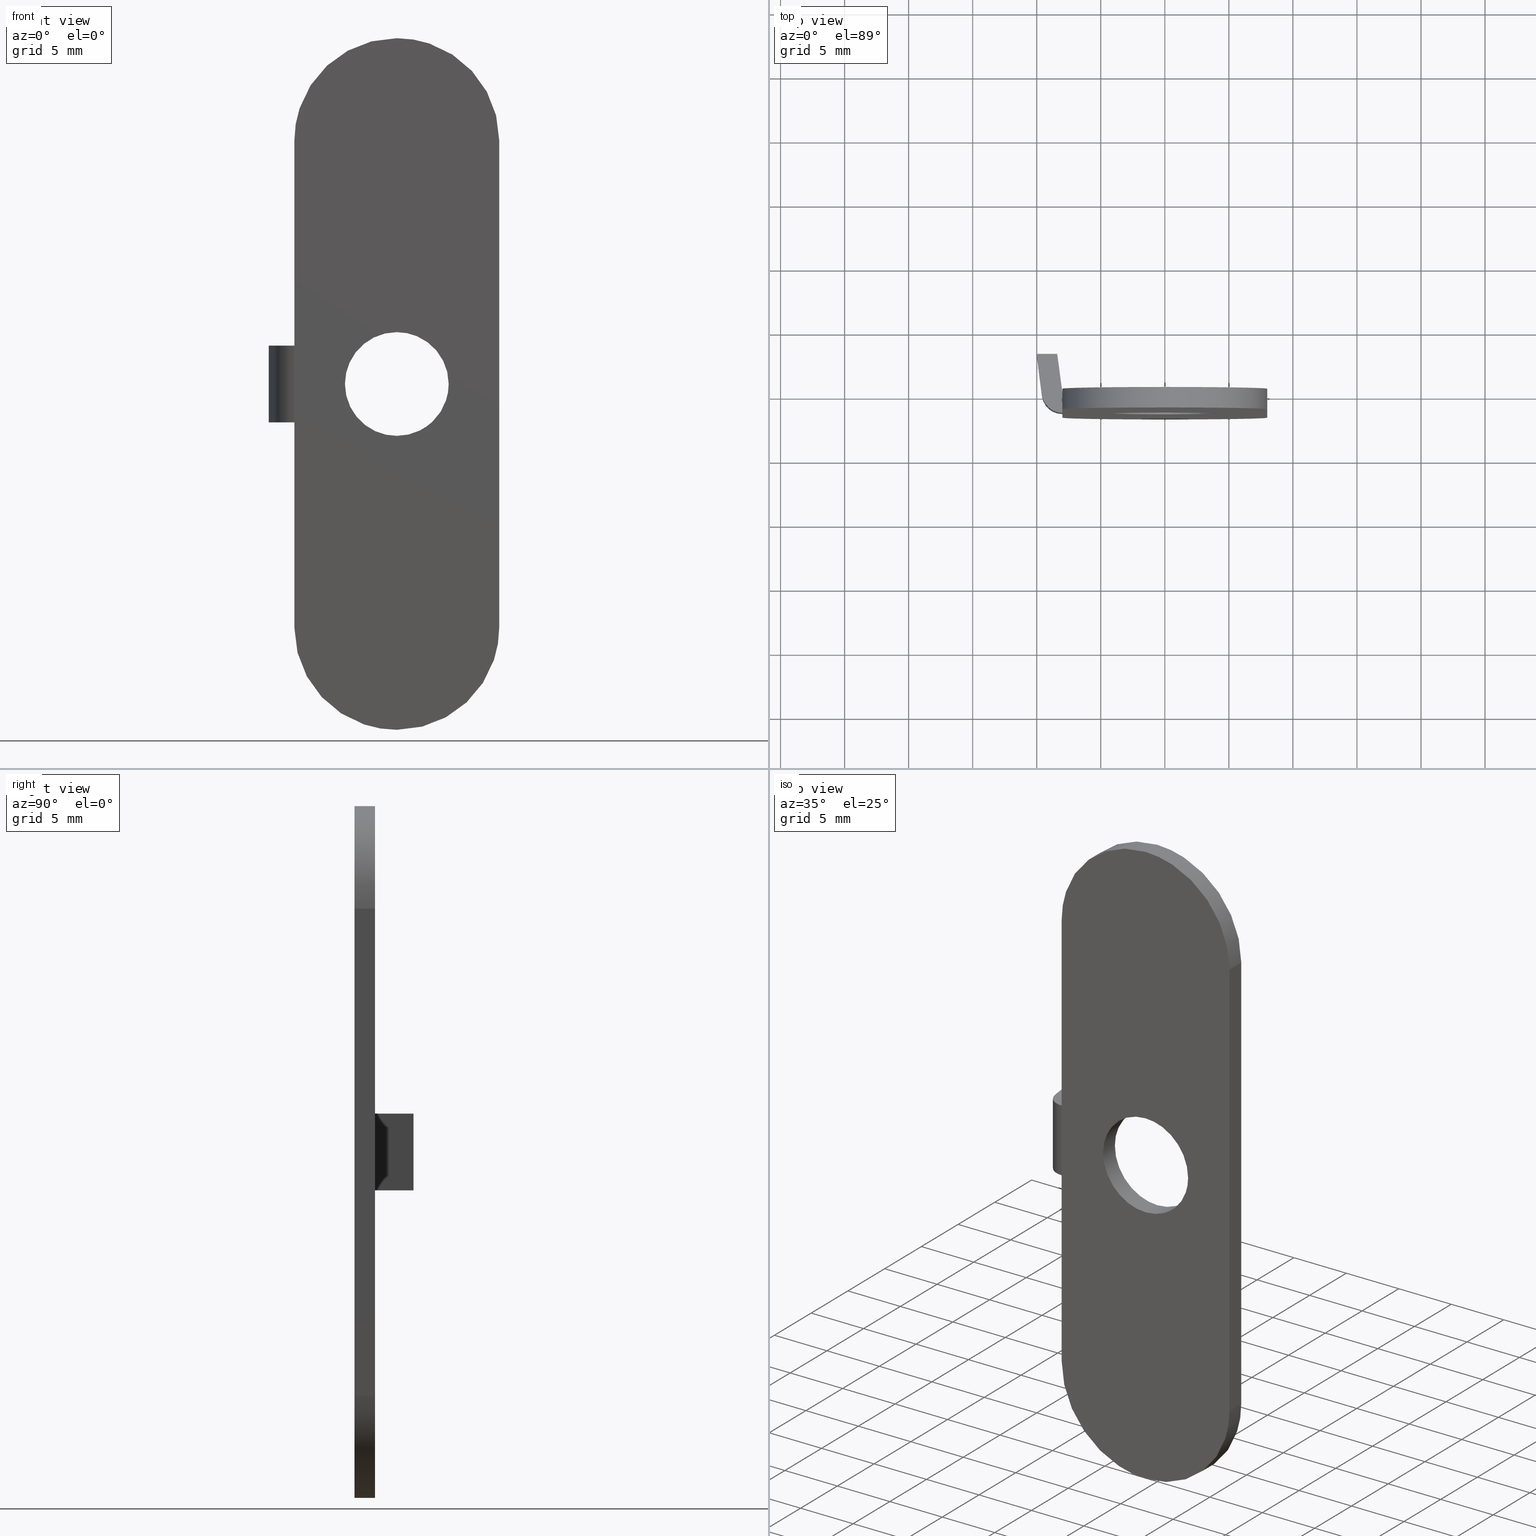
[diagram: canonical four-view strip — front | top / right | iso, engineering-drawing reading convention]
A machine part, canonical four-view strip (front | top / right | iso — engineering-drawing reading convention). The complete STEP part file that produces these views, byte-faithful:
ISO-10303-21;
HEADER;
/****************************************************************
 * Generated by software with PDE/Lib inside                    *
 * PDElib Version 4.4.1-0003, patched  Thursday August 19 11:58 *
 * International Technegroup Inc. (www.iti-oh.com)              *
 ****************************************************************/
FILE_DESCRIPTION((''),'2;1');
FILE_NAME('','2006-01-16T16:03:52',(''),(''),'','CADfix','');
FILE_SCHEMA(('AUTOMOTIVE_DESIGN'));
ENDSEC;
DATA;
#5=APPLICATION_CONTEXT('automotive design');
#6=APPLICATION_PROTOCOL_DEFINITION('Draft International Standard','automotive_design',1998,#5);
#7=PRODUCT_CONTEXT('None',#5,'mechanical');
#8=PRODUCT('base','','None',(#7));
#9=PRODUCT_RELATED_PRODUCT_CATEGORY('part','description',(#8));
#10=PRODUCT_DEFINITION_FORMATION('None','None',#8);
#11=PRODUCT_DEFINITION_CONTEXT('part definition',#5,'design');
#12=PRODUCT_DEFINITION('None','None',#10,#11);
#18=(NAMED_UNIT(*)PLANE_ANGLE_UNIT()SI_UNIT($,.RADIAN.));
#19=DIMENSIONAL_EXPONENTS(0.0,0.0,0.0,0.0,0.0,0.0,0.0);
#20=PLANE_ANGLE_MEASURE_WITH_UNIT(PLANE_ANGLE_MEASURE(0.017453292500000),#18);
#24=(CONVERSION_BASED_UNIT('DEGREE',#20)NAMED_UNIT(#19)PLANE_ANGLE_UNIT());
#28=(NAMED_UNIT(*)SI_UNIT($,.STERADIAN.)SOLID_ANGLE_UNIT());
#32=(LENGTH_UNIT()NAMED_UNIT(*)SI_UNIT(.MILLI.,.METRE.));
#34=UNCERTAINTY_MEASURE_WITH_UNIT(LENGTH_MEASURE(0.001000000000000),#32,'DISTANCE_ACCURACY_VALUE','');
#36=(GEOMETRIC_REPRESENTATION_CONTEXT(3)GLOBAL_UNCERTAINTY_ASSIGNED_CONTEXT((#34))GLOBAL_UNIT_ASSIGNED_CONTEXT((#24,#28,#32))REPRESENTATION_CONTEXT('None','None'));
#37=AXIS2_PLACEMENT_3D('',#38,#39,#40);
#38=CARTESIAN_POINT('',(0.0,0.0,0.0));
#39=DIRECTION('',(0.0,0.0,1.0));
#40=DIRECTION('',(1.0,0.0,0.0));
#41=ADVANCED_BREP_SHAPE_REPRESENTATION('',(#37,#765),#36);
#42=PRODUCT_DEFINITION_SHAPE('','',#12);
#43=SHAPE_DEFINITION_REPRESENTATION(#42,#41);
#44=CARTESIAN_POINT('',(3.092400353908882,0.039999774999999,2.615255255447202));
#45=CARTESIAN_POINT('',(3.017552872087634,0.039999774999999,2.703758424991023));
#46=CARTESIAN_POINT('',(2.937766202599764,0.039999774999999,2.787836031559702));
#47=CARTESIAN_POINT('',(0.149930171040061,0.039999774999999,5.725602234159466));
#48=CARTESIAN_POINT('',(-2.787836031559702,0.039999774999999,2.937766202599764));
#49=CARTESIAN_POINT('',(-5.725602234159466,0.039999774999999,0.149930171040061));
#50=CARTESIAN_POINT('',(-2.937766202599764,0.039999774999999,-2.787836031559702));
#51=CARTESIAN_POINT('',(-0.149930171040061,0.039999774999999,-5.725602234159466));
#52=CARTESIAN_POINT('',(2.787836031559702,0.039999774999999,-2.937766202599764));
#53=CARTESIAN_POINT('',(3.092400353908882,-1.640990769374965,2.615255255447202));
#54=CARTESIAN_POINT('',(3.017552872087634,-1.640990769374965,2.703758424991023));
#55=CARTESIAN_POINT('',(2.937766202599764,-1.640990769374964,2.787836031559702));
#56=CARTESIAN_POINT('',(0.149930171040061,-1.640990769374964,5.725602234159466));
#57=CARTESIAN_POINT('',(-2.787836031559702,-1.640990769374964,2.937766202599764));
#58=CARTESIAN_POINT('',(-5.725602234159466,-1.640990769374964,0.149930171040061));
#59=CARTESIAN_POINT('',(-2.937766202599764,-1.640990769374964,-2.787836031559702));
#60=CARTESIAN_POINT('',(-0.149930171040061,-1.640990769374964,-5.725602234159466));
#61=CARTESIAN_POINT('',(2.787836031559702,-1.640990769374964,-2.937766202599764));
#69=(BOUNDED_SURFACE()B_SPLINE_SURFACE(2,1,((#44,#53),(#45,#54),(#46,#55),(#47,#56),(#48,#57),(#49,#58),(#50,#59),(#51,#60),(#52,#61)),.UNSPECIFIED.,.F.,.F.,.U.)B_SPLINE_SURFACE_WITH_KNOTS((3,2,2,2,3),(2,2),(0.0,0.268410388417766,6.978670098861904,13.688929809306041,20.399189519750180),(0.0,1.0),.UNSPECIFIED.)GEOMETRIC_REPRESENTATION_ITEM()RATIONAL_B_SPLINE_SURFACE(((0.977505800795127,0.977505800795127),(0.988284271247462,0.988284271247462),(1.0,1.0),(0.707106781186548,0.707106781186548),(1.0,1.0),(0.707106781186548,0.707106781186548),(1.0,1.0),(0.707106781186548,0.707106781186548),(1.0,1.0)))REPRESENTATION_ITEM('')SURFACE());
#70=CARTESIAN_POINT('',(3.092400469154631,-1.599991000001859,2.615255294156009));
#71=VERTEX_POINT('',#70);
#72=CARTESIAN_POINT('',(0.0,-1.599990999999965,4.050000000000000));
#73=VERTEX_POINT('',#72);
#74=CARTESIAN_POINT('',(3.092400469154631,-1.599991000001859,2.615255294156009));
#75=CARTESIAN_POINT('',(2.820376977691375,-1.599991000001693,2.937277410438692));
#76=CARTESIAN_POINT('',(2.300836514893741,-1.599991000001375,3.385744414825498));
#77=CARTESIAN_POINT('',(1.493138806899813,-1.599991000000878,3.787413040616861));
#78=CARTESIAN_POINT('',(0.769694009481361,-1.599991000000438,3.999427392969075));
#79=CARTESIAN_POINT('',(0.274895964038809,-1.599991000000127,4.050034765647252));
#80=CARTESIAN_POINT('',(0.0,-1.599990999999965,4.050000000000000));
#81=B_SPLINE_CURVE_WITH_KNOTS('',3,(#74,#75,#76,#77,#78,#79,#80),.UNSPECIFIED.,.F.,.U.,(4,1,1,1,4),(0.000000015928992,1.264529401427014,2.034226246631516,2.693985453096188,3.518673681886411),.UNSPECIFIED.);
#82=EDGE_CURVE('',#71,#73,#81,.T.);
#83=ORIENTED_EDGE('',*,*,#82,.T.);
#84=CARTESIAN_POINT('',(-4.049999999999974,-1.599990999999965,-0.000000458331463));
#85=VERTEX_POINT('',#84);
#86=CARTESIAN_POINT('',(0.0,-1.599990999999965,4.050000000000000));
#87=CARTESIAN_POINT('',(-0.381054484313349,-1.599990999999965,4.050140602619687));
#88=CARTESIAN_POINT('',(-1.010515882282830,-1.599990999999965,3.960478360670183));
#89=CARTESIAN_POINT('',(-1.800263474168595,-1.599990999999965,3.650198816271311));
#90=CARTESIAN_POINT('',(-2.453598175635486,-1.599990999999961,3.253170430365296));
#91=CARTESIAN_POINT('',(-3.046438682187678,-1.599990999999966,2.715894467325104));
#92=CARTESIAN_POINT('',(-3.501115867815219,-1.599990999999963,2.078566816770383));
#93=CARTESIAN_POINT('',(-3.827842104405860,-1.599990999999986,1.387769674100269));
#94=CARTESIAN_POINT('',(-4.010294287966048,-1.599990999999902,0.712385562720853));
#95=CARTESIAN_POINT('',(-4.050008687073341,-1.599991000000036,0.215367743600465));
#96=CARTESIAN_POINT('',(-4.049999999999974,-1.599990999999965,-0.000000458331463));
#97=B_SPLINE_CURVE_WITH_KNOTS('',3,(#86,#87,#88,#89,#90,#91,#92,#93,#94,#95,#96),.UNSPECIFIED.,.F.,.U.,(4,1,1,1,1,1,1,1,4),(0.000000055227183,1.143122650493126,1.888650764688554,2.534773102149365,3.429381718679102,4.274308838590464,4.870726688445481,5.715652830963844,6.361765298970928),.UNSPECIFIED.);
#98=EDGE_CURVE('',#73,#85,#97,.T.);
#99=ORIENTED_EDGE('',*,*,#98,.T.);
#100=CARTESIAN_POINT('',(0.0,-1.599990999999965,-4.050000000000000));
#101=VERTEX_POINT('',#100);
#102=CARTESIAN_POINT('',(-4.049999999999974,-1.599990999999965,-0.000000458331463));
#103=CARTESIAN_POINT('',(-4.050201243229171,-1.599990999999974,-0.414195219986316));
#104=CARTESIAN_POINT('',(-3.937173920950953,-1.599990999999945,-1.143030930930646));
#105=CARTESIAN_POINT('',(-3.560234583896198,-1.599990999999985,-1.979403110114198));
#106=CARTESIAN_POINT('',(-3.143165495486218,-1.599990999999945,-2.579282978451702));
#107=CARTESIAN_POINT('',(-2.661637303840499,-1.599990999999951,-3.085117777227258));
#108=CARTESIAN_POINT('',(-2.078568684010875,-1.599991000000042,-3.501118182822238));
#109=CARTESIAN_POINT('',(-1.432818437939988,-1.599990999999898,-3.806521129870342));
#110=CARTESIAN_POINT('',(-0.762065598154865,-1.599990999999986,-4.001024033879598));
#111=CARTESIAN_POINT('',(-0.265070882309666,-1.599990999999965,-4.050037229062435));
#112=CARTESIAN_POINT('',(0.0,-1.599990999999965,-4.050000000000000));
#113=B_SPLINE_CURVE_WITH_KNOTS('',3,(#102,#103,#104,#105,#106,#107,#108,#109,#110,#111,#112),.UNSPECIFIED.,.F.,.U.,(4,1,1,1,1,1,1,1,4),(0.000000055387317,1.242531855871150,2.186866573110421,2.733573998402191,3.429381440726923,4.274308491726776,4.870726292973097,5.566556277256678,6.361764782321302),.UNSPECIFIED.);
#114=EDGE_CURVE('',#85,#101,#113,.T.);
#115=ORIENTED_EDGE('',*,*,#114,.T.);
#116=CARTESIAN_POINT('',(2.787835918983155,-1.599990999997954,-2.937766151683632));
#117=VERTEX_POINT('',#116);
#118=CARTESIAN_POINT('',(0.0,-1.599990999999965,-4.050000000000000));
#119=CARTESIAN_POINT('',(0.272254321299276,-1.599990999999766,-4.050041422317981));
#120=CARTESIAN_POINT('',(0.736667426263353,-1.599990999999435,-4.002980208834696));
#121=CARTESIAN_POINT('',(1.416976343417097,-1.599990999998945,-3.812625169096760));
#122=CARTESIAN_POINT('',(2.102919850558829,-1.599990999998443,-3.495560729496080));
#123=CARTESIAN_POINT('',(2.555550301668501,-1.599990999998125,-3.158303154968257));
#124=CARTESIAN_POINT('',(2.787835918983155,-1.599990999997954,-2.937766151683632));
#125=B_SPLINE_CURVE_WITH_KNOTS('',3,(#118,#119,#120,#121,#122,#123,#124),.UNSPECIFIED.,.F.,.U.,(4,1,1,1,4),(0.000000013875821,0.816757953015864,1.393299582913002,2.113960479790959,3.074851748193050),.UNSPECIFIED.);
#126=EDGE_CURVE('',#101,#117,#125,.T.);
#127=ORIENTED_EDGE('',*,*,#126,.T.);
#128=CARTESIAN_POINT('',(2.787835919395448,-3.816392E-017,-2.937766151292380));
#129=VERTEX_POINT('',#128);
#130=CARTESIAN_POINT('',(2.787835919395448,-3.816392E-017,-2.937766151292380));
#131=CARTESIAN_POINT('',(2.787835918983155,-1.599990999997954,-2.937766151683632));
#132=QUASI_UNIFORM_CURVE('',1,(#130,#131),.UNSPECIFIED.,.F.,.U.);
#133=EDGE_CURVE('',#129,#117,#132,.T.);
#134=ORIENTED_EDGE('',*,*,#133,.F.);
#135=CARTESIAN_POINT('',(0.0,0.0,-4.050000000000000));
#136=VERTEX_POINT('',#135);
#137=CARTESIAN_POINT('',(0.0,0.0,-4.050000000000000));
#138=CARTESIAN_POINT('',(0.240220417416853,-3.288483E-018,-4.050016184962010));
#139=CARTESIAN_POINT('',(0.768710072565096,-1.052321E-017,-4.002872189160777));
#140=CARTESIAN_POINT('',(1.448842863436156,-1.983385E-017,-3.803827950127444));
#141=CARTESIAN_POINT('',(2.154643793244180,-2.949587E-017,-3.457007878002749));
#142=CARTESIAN_POINT('',(2.555545794519778,-3.498399E-017,-3.158300278042939));
#143=CARTESIAN_POINT('',(2.787835919395448,-3.816392E-017,-2.937766151292380));
#144=B_SPLINE_CURVE_WITH_KNOTS('',3,(#137,#138,#139,#140,#141,#142,#143),.UNSPECIFIED.,.F.,.U.,(4,1,1,1,4),(0.000000013875587,0.720667942032535,1.585462012393952,2.113960480181659,3.074851748761453),.UNSPECIFIED.);
#145=EDGE_CURVE('',#136,#129,#144,.T.);
#146=ORIENTED_EDGE('',*,*,#145,.F.);
#147=CARTESIAN_POINT('',(-4.049999999999974,0.0,-0.000000458331463));
#148=VERTEX_POINT('',#147);
#149=CARTESIAN_POINT('',(-4.049999999999974,0.0,-0.000000458331463));
#150=CARTESIAN_POINT('',(-4.050201210590498,0.0,-0.414195210118378));
#151=CARTESIAN_POINT('',(-3.937173954854492,0.0,-1.143030933931603));
#152=CARTESIAN_POINT('',(-3.560234567187769,0.0,-1.979403110597706));
#153=CARTESIAN_POINT('',(-3.143165499961528,0.0,-2.579282977979685));
#154=CARTESIAN_POINT('',(-2.661637304370337,0.0,-3.085117777128934));
#155=CARTESIAN_POINT('',(-2.078568683836292,0.0,-3.501118182854742));
#156=CARTESIAN_POINT('',(-1.432818437965541,0.0,-3.806521129865583));
#157=CARTESIAN_POINT('',(-0.762065598154865,0.0,-4.001024033879598));
#158=CARTESIAN_POINT('',(-0.265070882309666,0.0,-4.050037229062436));
#159=CARTESIAN_POINT('',(0.0,0.0,-4.050000000000000));
#160=B_SPLINE_CURVE_WITH_KNOTS('',3,(#149,#150,#151,#152,#153,#154,#155,#156,#157,#158,#159),.UNSPECIFIED.,.F.,.U.,(4,1,1,1,1,1,1,1,4),(0.000000055387317,1.242531855871150,2.186866573110421,2.733573998402191,3.429381440726923,4.274308491726776,4.870726292973097,5.566556277256678,6.361764782321302),.UNSPECIFIED.);
#161=EDGE_CURVE('',#148,#136,#160,.T.);
#162=ORIENTED_EDGE('',*,*,#161,.F.);
#163=CARTESIAN_POINT('',(0.0,0.0,4.050000000000000));
#164=VERTEX_POINT('',#163);
#165=CARTESIAN_POINT('',(0.0,0.0,4.050000000000000));
#166=CARTESIAN_POINT('',(-0.381054484313349,0.0,4.050140602619686));
#167=CARTESIAN_POINT('',(-1.010515882282831,0.0,3.960478360670185));
#168=CARTESIAN_POINT('',(-1.800263474168595,0.0,3.650198816271311));
#169=CARTESIAN_POINT('',(-2.453598175635485,0.0,3.253170430365298));
#170=CARTESIAN_POINT('',(-3.046438682187677,0.0,2.715894467325104));
#171=CARTESIAN_POINT('',(-3.501115867815219,0.0,2.078566816770383));
#172=CARTESIAN_POINT('',(-3.827842104405859,0.0,1.387769674100270));
#173=CARTESIAN_POINT('',(-4.010294287966048,0.0,0.712385562720852));
#174=CARTESIAN_POINT('',(-4.050008687073340,0.0,0.215367743600465));
#175=CARTESIAN_POINT('',(-4.049999999999974,0.0,-0.000000458331463));
#176=B_SPLINE_CURVE_WITH_KNOTS('',3,(#165,#166,#167,#168,#169,#170,#171,#172,#173,#174,#175),.UNSPECIFIED.,.F.,.U.,(4,1,1,1,1,1,1,1,4),(0.000000055227183,1.143122650493126,1.888650764688554,2.534773102149365,3.429381718679102,4.274308838590464,4.870726688445481,5.715652830963844,6.361765298970928),.UNSPECIFIED.);
#177=EDGE_CURVE('',#164,#148,#176,.T.);
#178=ORIENTED_EDGE('',*,*,#177,.F.);
#179=CARTESIAN_POINT('',(3.092400468792818,-3.904214E-017,2.615255294583833));
#180=VERTEX_POINT('',#179);
#181=CARTESIAN_POINT('',(3.092400468792818,-3.904214E-017,2.615255294583833));
#182=CARTESIAN_POINT('',(2.914918407133498,-3.680139E-017,2.825179600935564));
#183=CARTESIAN_POINT('',(2.530233861974607,-3.194468E-017,3.195875660060409));
#184=CARTESIAN_POINT('',(1.925845666971410,-2.431416E-017,3.583393025228045));
#185=CARTESIAN_POINT('',(1.284921207924465,-1.622237E-017,3.859869496647573));
#186=CARTESIAN_POINT('',(0.659749133948133,-8.329457E-018,4.015747611664701));
#187=CARTESIAN_POINT('',(0.201587019214080,-2.545074E-018,4.050004308013179));
#188=CARTESIAN_POINT('',(0.0,0.0,4.050000000000000));
#189=B_SPLINE_CURVE_WITH_KNOTS('',3,(#181,#182,#183,#184,#185,#186,#187,#188),.UNSPECIFIED.,.F.,.U.,(4,1,1,1,1,4),(0.000000015929191,0.824688244593100,1.594410479268914,2.144189492079690,2.913905276473439,3.518673681326092),.UNSPECIFIED.);
#190=EDGE_CURVE('',#180,#164,#189,.T.);
#191=ORIENTED_EDGE('',*,*,#190,.F.);
#192=CARTESIAN_POINT('',(3.092400468792818,-3.904214E-017,2.615255294583833));
#193=CARTESIAN_POINT('',(3.092400469154631,-1.599991000001859,2.615255294156009));
#194=QUASI_UNIFORM_CURVE('',1,(#192,#193),.UNSPECIFIED.,.F.,.U.);
#195=EDGE_CURVE('',#180,#71,#194,.T.);
#196=ORIENTED_EDGE('',*,*,#195,.T.);
#197=EDGE_LOOP('',(#83,#99,#115,#127,#134,#146,#162,#178,#191,#196));
#198=FACE_OUTER_BOUND('',#197,.T.);
#199=ADVANCED_FACE('',(#198),#69,.F.);
#200=CARTESIAN_POINT('',(2.787836031559702,0.039999774999999,-2.937766202599764));
#201=CARTESIAN_POINT('',(5.562125650609031,0.039999774999999,-0.305063656317029));
#202=CARTESIAN_POINT('',(3.092400353908882,0.039999774999999,2.615255255447202));
#203=CARTESIAN_POINT('',(2.787836031559702,-1.640990769374964,-2.937766202599764));
#204=CARTESIAN_POINT('',(5.562125650609031,-1.640990769374964,-0.305063656317029));
#205=CARTESIAN_POINT('',(3.092400353908882,-1.640990769374965,2.615255255447202));
#213=(BOUNDED_SURFACE()B_SPLINE_SURFACE(2,1,((#200,#203),(#201,#204),(#202,#205)),.UNSPECIFIED.,.F.,.F.,.U.)B_SPLINE_SURFACE_WITH_KNOTS((3,3),(2,2),(0.0,6.440081412770597),(0.0,1.0),.UNSPECIFIED.)GEOMETRIC_REPRESENTATION_ITEM()RATIONAL_B_SPLINE_SURFACE(((1.0,1.0),(0.718822509939086,0.718822509939086),(0.977505800795127,0.977505800795127)))REPRESENTATION_ITEM('')SURFACE());
#214=CARTESIAN_POINT('',(4.049999999999973,-1.599990999999965,0.000000458331472));
#215=VERTEX_POINT('',#214);
#216=CARTESIAN_POINT('',(4.049999999999973,-1.599990999999965,0.000000458331472));
#217=CARTESIAN_POINT('',(4.050147345321640,-1.599991000000244,0.385021680494588));
#218=CARTESIAN_POINT('',(3.962745837365865,-1.599991000000690,0.992037114315919));
#219=CARTESIAN_POINT('',(3.621113157875833,-1.599991000001318,1.879469827514581));
#220=CARTESIAN_POINT('',(3.312407704599532,-1.599991000001674,2.355261533687516));
#221=CARTESIAN_POINT('',(3.092400469154631,-1.599991000001859,2.615255294156009));
#222=B_SPLINE_CURVE_WITH_KNOTS('',3,(#216,#217,#218,#219,#220,#221),.UNSPECIFIED.,.F.,.U.,(4,1,1,4),(0.000000012530482,1.155009485333611,1.821353007942206,2.843092339355573),.UNSPECIFIED.);
#223=EDGE_CURVE('',#215,#71,#222,.T.);
#224=ORIENTED_EDGE('',*,*,#223,.T.);
#225=ORIENTED_EDGE('',*,*,#195,.F.);
#226=CARTESIAN_POINT('',(4.049999999999973,0.0,0.000000458331472));
#227=VERTEX_POINT('',#226);
#228=CARTESIAN_POINT('',(4.049999999999973,0.0,0.000000458331472));
#229=CARTESIAN_POINT('',(4.050013335170339,-3.757967E-018,0.251729535548440));
#230=CARTESIAN_POINT('',(3.997412479908575,-1.215826E-017,0.814427069484117));
#231=CARTESIAN_POINT('',(3.714040923694002,-2.575719E-017,1.725357046290256));
#232=CARTESIAN_POINT('',(3.341123608561907,-3.465480E-017,2.321367472700882));
#233=CARTESIAN_POINT('',(3.092400468792818,-3.904214E-017,2.615255294583833));
#234=B_SPLINE_CURVE_WITH_KNOTS('',3,(#228,#229,#230,#231,#232,#233),.UNSPECIFIED.,.F.,.U.,(4,1,1,4),(0.000000012530525,0.755196916126529,1.688082866877942,2.843092339915888),.UNSPECIFIED.);
#235=EDGE_CURVE('',#227,#180,#234,.T.);
#236=ORIENTED_EDGE('',*,*,#235,.F.);
#237=CARTESIAN_POINT('',(2.787835919395448,-3.816392E-017,-2.937766151292380));
#238=CARTESIAN_POINT('',(2.961698824237356,-3.602091E-017,-2.772802412003677));
#239=CARTESIAN_POINT('',(3.291390689146556,-3.116492E-017,-2.398999906914581));
#240=CARTESIAN_POINT('',(3.653240560915428,-2.330387E-017,-1.793875618788867));
#241=CARTESIAN_POINT('',(3.961906471046350,-1.289758E-017,-0.992824529655005));
#242=CARTESIAN_POINT('',(4.050164129829514,-5.115335E-018,-0.393765746528907));
#243=CARTESIAN_POINT('',(4.049999999999973,0.0,0.000000458331472));
#244=B_SPLINE_CURVE_WITH_KNOTS('',3,(#237,#238,#239,#240,#241,#242,#243),.UNSPECIFIED.,.F.,.U.,(4,1,1,1,4),(0.000000016472788,0.719011960539485,1.489392776201737,2.105678138751504,3.286913793346115),.UNSPECIFIED.);
#245=EDGE_CURVE('',#129,#227,#244,.T.);
#246=ORIENTED_EDGE('',*,*,#245,.F.);
#247=ORIENTED_EDGE('',*,*,#133,.T.);
#248=CARTESIAN_POINT('',(2.787835918983155,-1.599990999997954,-2.937766151683632));
#249=CARTESIAN_POINT('',(3.011403582672485,-1.599990999998101,-2.725693667472977));
#250=CARTESIAN_POINT('',(3.398666969683116,-1.599990999998413,-2.263382151183006));
#251=CARTESIAN_POINT('',(3.761295607858146,-1.599990999998897,-1.559207491373230));
#252=CARTESIAN_POINT('',(3.993044856083322,-1.599990999999419,-0.804578728298740));
#253=CARTESIAN_POINT('',(4.050066773174976,-1.599990999999753,-0.308152803475064));
#254=CARTESIAN_POINT('',(4.049999999999973,-1.599990999999965,0.000000458331472));
#255=B_SPLINE_CURVE_WITH_KNOTS('',3,(#248,#249,#250,#251,#252,#253,#254),.UNSPECIFIED.,.F.,.U.,(4,1,1,1,4),(0.000000016472933,0.924444961002549,1.797521033919546,2.362468849384825,3.286913793914511),.UNSPECIFIED.);
#256=EDGE_CURVE('',#117,#215,#255,.T.);
#257=ORIENTED_EDGE('',*,*,#256,.T.);
#258=EDGE_LOOP('',(#224,#225,#236,#246,#247,#257));
#259=FACE_OUTER_BOUND('',#258,.T.);
#260=ADVANCED_FACE('',(#259),#213,.F.);
#261=CARTESIAN_POINT('',(-10.099899996123609,-1.829774278946591,3.0));
#262=CARTESIAN_POINT('',(-7.900099950232208,-1.829774278946591,3.0));
#263=CARTESIAN_POINT('',(-10.099899996123609,3.229770318455473,3.0));
#264=CARTESIAN_POINT('',(-7.900099950232208,3.229770318455473,3.0));
#265=B_SPLINE_SURFACE_WITH_KNOTS('',1,1,((#261,#263),(#262,#264)),.UNSPECIFIED.,.F.,.F.,.U.,(2,2),(2,2),(0.0,2.199800045891403),(0.0,5.059544597402065),.UNSPECIFIED.);
#266=CARTESIAN_POINT('',(-9.586867277870271,-0.204578206132975,3.0));
#267=VERTEX_POINT('',#266);
#268=CARTESIAN_POINT('',(-10.0,3.0,3.0));
#269=VERTEX_POINT('',#268);
#270=CARTESIAN_POINT('',(-9.586867277870271,-0.204578206132975,3.0));
#271=CARTESIAN_POINT('',(-10.0,3.0,3.0));
#272=QUASI_UNIFORM_CURVE('',1,(#270,#271),.UNSPECIFIED.,.F.,.U.);
#273=EDGE_CURVE('',#267,#269,#272,.T.);
#274=ORIENTED_EDGE('',*,*,#273,.F.);
#275=CARTESIAN_POINT('',(-8.0,-1.600004125000085,3.0));
#276=VERTEX_POINT('',#275);
#277=CARTESIAN_POINT('',(-9.586867277870271,-0.204578206132975,3.0));
#278=CARTESIAN_POINT('',(-9.566953281561156,-0.359589090497325,2.999999999999999));
#279=CARTESIAN_POINT('',(-9.491022679725369,-0.628544498606450,3.0));
#280=CARTESIAN_POINT('',(-9.275554269501662,-0.993060559528498,2.999999999999997));
#281=CARTESIAN_POINT('',(-9.001999854975544,-1.268521695400263,3.000000000000006));
#282=CARTESIAN_POINT('',(-8.670133183435954,-1.467886770933523,2.999999999999989));
#283=CARTESIAN_POINT('',(-8.336600474465611,-1.576753670052306,3.000000000000035));
#284=CARTESIAN_POINT('',(-8.108193150470292,-1.600018611005220,2.999999999999977));
#285=CARTESIAN_POINT('',(-8.0,-1.600004125000085,3.0));
#286=B_SPLINE_CURVE_WITH_KNOTS('',3,(#277,#278,#279,#280,#281,#282,#283,#284,#285),.UNSPECIFIED.,.F.,.U.,(4,1,1,1,1,1,4),(0.000000058569539,0.468845914129515,0.829507329329176,1.262271806914762,1.622938742820413,1.983600158020199,2.308185715951479),.UNSPECIFIED.);
#287=EDGE_CURVE('',#267,#276,#286,.T.);
#288=ORIENTED_EDGE('',*,*,#287,.T.);
#289=CARTESIAN_POINT('',(-8.0,0.000026249934202,3.0));
#290=VERTEX_POINT('',#289);
#291=CARTESIAN_POINT('',(-8.0,0.000026249934202,3.0));
#292=CARTESIAN_POINT('',(-8.0,-1.600004125000085,3.0));
#293=QUASI_UNIFORM_CURVE('',1,(#291,#292),.UNSPECIFIED.,.F.,.U.);
#294=EDGE_CURVE('',#290,#276,#293,.T.);
#295=ORIENTED_EDGE('',*,*,#294,.F.);
#296=CARTESIAN_POINT('',(-8.400002000000001,3.0,3.0));
#297=VERTEX_POINT('',#296);
#298=CARTESIAN_POINT('',(-8.400002000000001,3.0,3.0));
#299=CARTESIAN_POINT('',(-8.0,0.000026249934202,3.0));
#300=QUASI_UNIFORM_CURVE('',1,(#298,#299),.UNSPECIFIED.,.F.,.U.);
#301=EDGE_CURVE('',#297,#290,#300,.T.);
#302=ORIENTED_EDGE('',*,*,#301,.F.);
#303=CARTESIAN_POINT('',(-10.0,3.0,3.0));
#304=CARTESIAN_POINT('',(-8.400002000000001,3.0,3.0));
#305=QUASI_UNIFORM_CURVE('',1,(#303,#304),.UNSPECIFIED.,.F.,.U.);
#306=EDGE_CURVE('',#269,#297,#305,.T.);
#307=ORIENTED_EDGE('',*,*,#306,.F.);
#308=EDGE_LOOP('',(#274,#288,#295,#302,#307));
#309=FACE_OUTER_BOUND('',#308,.T.);
#310=ADVANCED_FACE('',(#309),#265,.T.);
#311=CARTESIAN_POINT('',(-10.099899996123609,-1.829774278946591,-3.0));
#312=CARTESIAN_POINT('',(-7.900099950232208,-1.829774278946591,-3.0));
#313=CARTESIAN_POINT('',(-10.099899996123609,3.229770318455473,-3.0));
#314=CARTESIAN_POINT('',(-7.900099950232208,3.229770318455473,-3.0));
#315=B_SPLINE_SURFACE_WITH_KNOTS('',1,1,((#311,#313),(#312,#314)),.UNSPECIFIED.,.F.,.F.,.U.,(2,2),(2,2),(0.0,2.199800045891403),(0.0,5.059544597402065),.UNSPECIFIED.);
#316=CARTESIAN_POINT('',(-9.586867277870271,-0.204578206132975,-3.0));
#317=VERTEX_POINT('',#316);
#318=CARTESIAN_POINT('',(-10.0,3.0,-3.0));
#319=VERTEX_POINT('',#318);
#320=CARTESIAN_POINT('',(-9.586867277870271,-0.204578206132975,-3.0));
#321=CARTESIAN_POINT('',(-10.0,3.0,-3.0));
#322=QUASI_UNIFORM_CURVE('',1,(#320,#321),.UNSPECIFIED.,.F.,.U.);
#323=EDGE_CURVE('',#317,#319,#322,.T.);
#324=ORIENTED_EDGE('',*,*,#323,.T.);
#325=CARTESIAN_POINT('',(-8.400002000000001,3.0,-3.0));
#326=VERTEX_POINT('',#325);
#327=CARTESIAN_POINT('',(-10.0,3.0,-3.0));
#328=CARTESIAN_POINT('',(-8.400002000000001,3.0,-3.0));
#329=QUASI_UNIFORM_CURVE('',1,(#327,#328),.UNSPECIFIED.,.F.,.U.);
#330=EDGE_CURVE('',#319,#326,#329,.T.);
#331=ORIENTED_EDGE('',*,*,#330,.T.);
#332=CARTESIAN_POINT('',(-8.0,0.000026249934202,-3.0));
#333=VERTEX_POINT('',#332);
#334=CARTESIAN_POINT('',(-8.400002000000001,3.0,-3.0));
#335=CARTESIAN_POINT('',(-8.0,0.000026249934202,-3.0));
#336=QUASI_UNIFORM_CURVE('',1,(#334,#335),.UNSPECIFIED.,.F.,.U.);
#337=EDGE_CURVE('',#326,#333,#336,.T.);
#338=ORIENTED_EDGE('',*,*,#337,.T.);
#339=CARTESIAN_POINT('',(-8.0,-1.600004125000085,-3.0));
#340=VERTEX_POINT('',#339);
#341=CARTESIAN_POINT('',(-8.0,0.000026249934202,-3.0));
#342=CARTESIAN_POINT('',(-8.0,-1.600004125000085,-3.0));
#343=QUASI_UNIFORM_CURVE('',1,(#341,#342),.UNSPECIFIED.,.F.,.U.);
#344=EDGE_CURVE('',#333,#340,#343,.T.);
#345=ORIENTED_EDGE('',*,*,#344,.T.);
#346=CARTESIAN_POINT('',(-9.586867277870271,-0.204578206132975,-3.0));
#347=CARTESIAN_POINT('',(-9.566953281561156,-0.359589090497325,-2.999999999999999));
#348=CARTESIAN_POINT('',(-9.491022679725369,-0.628544498606450,-3.0));
#349=CARTESIAN_POINT('',(-9.275554269501662,-0.993060559528498,-2.999999999999997));
#350=CARTESIAN_POINT('',(-9.001999854975544,-1.268521695400263,-3.000000000000006));
#351=CARTESIAN_POINT('',(-8.670133183435954,-1.467886770933523,-2.999999999999989));
#352=CARTESIAN_POINT('',(-8.336600474465611,-1.576753670052306,-3.000000000000035));
#353=CARTESIAN_POINT('',(-8.108193150470292,-1.600018611005220,-2.999999999999977));
#354=CARTESIAN_POINT('',(-8.0,-1.600004125000085,-3.0));
#355=B_SPLINE_CURVE_WITH_KNOTS('',3,(#346,#347,#348,#349,#350,#351,#352,#353,#354),.UNSPECIFIED.,.F.,.U.,(4,1,1,1,1,1,4),(0.000000058569539,0.468845914129515,0.829507329329176,1.262271806914762,1.622938742820413,1.983600158020199,2.308185715951479),.UNSPECIFIED.);
#356=EDGE_CURVE('',#317,#340,#355,.T.);
#357=ORIENTED_EDGE('',*,*,#356,.F.);
#358=EDGE_LOOP('',(#324,#331,#338,#345,#357));
#359=FACE_OUTER_BOUND('',#358,.T.);
#360=ADVANCED_FACE('',(#359),#315,.F.);
#361=CARTESIAN_POINT('',(-7.986037543202603,-1.599939076902674,-3.150000000000000));
#362=CARTESIAN_POINT('',(-7.986037543202603,-1.599939076902674,3.153750000000001));
#363=CARTESIAN_POINT('',(-9.478004869315511,-1.612959278505792,-3.150000000000000));
#364=CARTESIAN_POINT('',(-9.478004869315511,-1.612959278505792,3.153750000000000));
#365=CARTESIAN_POINT('',(-9.595067733973004,-0.125534553164552,-3.150000000000000));
#366=CARTESIAN_POINT('',(-9.595067733973004,-0.125534553164552,3.153750000000001));
#374=(BOUNDED_SURFACE()B_SPLINE_SURFACE(1,2,((#361,#363,#365),(#362,#364,#366)),.UNSPECIFIED.,.F.,.F.,.U.)B_SPLINE_SURFACE_WITH_KNOTS((2,2),(3,3),(0.0,6.303750000000002),(0.0,2.521027043935630),.UNSPECIFIED.)GEOMETRIC_REPRESENTATION_ITEM()RATIONAL_B_SPLINE_SURFACE(((1.0,0.731353701619171,1.0),(1.0,0.731353701619171,1.0)))REPRESENTATION_ITEM('')SURFACE());
#375=ORIENTED_EDGE('',*,*,#287,.F.);
#376=CARTESIAN_POINT('',(-9.586867277870271,-0.204578206132975,-3.0));
#377=CARTESIAN_POINT('',(-9.586867277870271,-0.204578206132975,3.0));
#378=QUASI_UNIFORM_CURVE('',1,(#376,#377),.UNSPECIFIED.,.F.,.U.);
#379=EDGE_CURVE('',#317,#267,#378,.T.);
#380=ORIENTED_EDGE('',*,*,#379,.F.);
#381=ORIENTED_EDGE('',*,*,#356,.T.);
#382=CARTESIAN_POINT('',(-8.0,-1.600004125000085,3.0));
#383=CARTESIAN_POINT('',(-8.0,-1.600004125000085,-3.0));
#384=QUASI_UNIFORM_CURVE('',1,(#382,#383),.UNSPECIFIED.,.F.,.U.);
#385=EDGE_CURVE('',#276,#340,#384,.T.);
#386=ORIENTED_EDGE('',*,*,#385,.F.);
#387=EDGE_LOOP('',(#375,#380,#381,#386));
#388=FACE_OUTER_BOUND('',#387,.T.);
#389=ADVANCED_FACE('',(#388),#374,.T.);
#390=CARTESIAN_POINT('',(-8.419974010504843,3.149849704162070,-3.299699988370836));
#391=CARTESIAN_POINT('',(-7.980016672488223,-0.149822081783318,-3.299699988370836));
#392=CARTESIAN_POINT('',(-8.419974010504843,3.149849704162070,3.299700149303377));
#393=CARTESIAN_POINT('',(-7.980016672488223,-0.149822081783318,3.299700149303377));
#394=B_SPLINE_SURFACE_WITH_KNOTS('',1,1,((#390,#392),(#391,#393)),.UNSPECIFIED.,.F.,.F.,.U.,(2,2),(2,2),(0.0,3.328873135798163),(0.0,6.599400137674213),.UNSPECIFIED.);
#395=ORIENTED_EDGE('',*,*,#301,.T.);
#396=CARTESIAN_POINT('',(-8.0,0.000026249934202,3.0));
#397=CARTESIAN_POINT('',(-8.0,0.000026249934202,-3.0));
#398=QUASI_UNIFORM_CURVE('',1,(#396,#397),.UNSPECIFIED.,.F.,.U.);
#399=EDGE_CURVE('',#290,#333,#398,.T.);
#400=ORIENTED_EDGE('',*,*,#399,.T.);
#401=ORIENTED_EDGE('',*,*,#337,.F.);
#402=CARTESIAN_POINT('',(-8.400002000000001,3.0,-3.0));
#403=CARTESIAN_POINT('',(-8.400002000000001,3.0,3.0));
#404=QUASI_UNIFORM_CURVE('',1,(#402,#403),.UNSPECIFIED.,.F.,.U.);
#405=EDGE_CURVE('',#326,#297,#404,.T.);
#406=ORIENTED_EDGE('',*,*,#405,.T.);
#407=EDGE_LOOP('',(#395,#400,#401,#406));
#408=FACE_OUTER_BOUND('',#407,.T.);
#409=ADVANCED_FACE('',(#408),#394,.F.);
#410=CARTESIAN_POINT('',(-10.079919919864160,3.0,3.299699988370836));
#411=CARTESIAN_POINT('',(-10.079919919864160,3.0,-3.299700149303377));
#412=CARTESIAN_POINT('',(-8.320081579457451,3.0,3.299699988370836));
#413=CARTESIAN_POINT('',(-8.320081579457451,3.0,-3.299700149303377));
#414=B_SPLINE_SURFACE_WITH_KNOTS('',1,1,((#410,#412),(#411,#413)),.UNSPECIFIED.,.F.,.F.,.U.,(2,2),(2,2),(0.0,6.599400137674213),(0.041708323039487,0.958291937730834),.UNSPECIFIED.);
#415=ORIENTED_EDGE('',*,*,#306,.T.);
#416=ORIENTED_EDGE('',*,*,#405,.F.);
#417=ORIENTED_EDGE('',*,*,#330,.F.);
#418=CARTESIAN_POINT('',(-10.0,3.0,-3.0));
#419=CARTESIAN_POINT('',(-10.0,3.0,3.0));
#420=QUASI_UNIFORM_CURVE('',1,(#418,#419),.UNSPECIFIED.,.F.,.U.);
#421=EDGE_CURVE('',#319,#269,#420,.T.);
#422=ORIENTED_EDGE('',*,*,#421,.T.);
#423=EDGE_LOOP('',(#415,#416,#417,#422));
#424=FACE_OUTER_BOUND('',#423,.T.);
#425=ADVANCED_FACE('',(#424),#414,.F.);
#426=CARTESIAN_POINT('',(-9.566232650907423,-0.364647055579078,-3.299699988370836));
#427=CARTESIAN_POINT('',(-10.020635925444990,3.160068769428973,-3.299699988370836));
#428=CARTESIAN_POINT('',(-9.566232650907423,-0.364647055579078,3.299700149303377));
#429=CARTESIAN_POINT('',(-10.020635925444990,3.160068769428973,3.299700149303377));
#430=B_SPLINE_SURFACE_WITH_KNOTS('',1,1,((#426,#428),(#427,#429)),.UNSPECIFIED.,.F.,.F.,.U.,(2,2),(2,2),(0.0,3.553885758289461),(0.0,6.599400137674213),.UNSPECIFIED.);
#431=ORIENTED_EDGE('',*,*,#273,.T.);
#432=ORIENTED_EDGE('',*,*,#421,.F.);
#433=ORIENTED_EDGE('',*,*,#323,.F.);
#434=ORIENTED_EDGE('',*,*,#379,.T.);
#435=EDGE_LOOP('',(#431,#432,#433,#434));
#436=FACE_OUTER_BOUND('',#435,.T.);
#437=ADVANCED_FACE('',(#436),#430,.F.);
#438=CARTESIAN_POINT('',(-8.799199968988896,-1.599991000000000,29.697299895337490));
#439=CARTESIAN_POINT('',(8.799200398142338,-1.599991000000000,29.697299895337490));
#440=CARTESIAN_POINT('',(-8.799199968988896,-1.599991000000000,-29.697301343730359));
#441=CARTESIAN_POINT('',(8.799200398142338,-1.599991000000000,-29.697301343730359));
#442=B_SPLINE_SURFACE_WITH_KNOTS('',1,1,((#438,#440),(#439,#441)),.UNSPECIFIED.,.F.,.F.,.U.,(2,2),(2,2),(0.0,17.598400367131230),(0.0,59.394601239067860),.UNSPECIFIED.);
#443=CARTESIAN_POINT('',(8.0,-1.599990999999965,19.0));
#444=VERTEX_POINT('',#443);
#445=CARTESIAN_POINT('',(8.0,-1.599990999999965,-19.0));
#446=VERTEX_POINT('',#445);
#447=CARTESIAN_POINT('',(8.0,-1.599990999999965,19.0));
#448=CARTESIAN_POINT('',(8.0,-1.599990999999965,-19.0));
#449=QUASI_UNIFORM_CURVE('',1,(#447,#448),.UNSPECIFIED.,.F.,.U.);
#450=EDGE_CURVE('',#444,#446,#449,.T.);
#451=ORIENTED_EDGE('',*,*,#450,.F.);
#452=CARTESIAN_POINT('',(-0.000000671420413,-1.599990999999965,26.999999999999979));
#453=VERTEX_POINT('',#452);
#454=CARTESIAN_POINT('',(8.0,-1.599990999999965,19.0));
#455=CARTESIAN_POINT('',(8.000055658176320,-1.599990999999967,19.523601726682081));
#456=CARTESIAN_POINT('',(7.900058436080794,-1.599990999999963,20.538051594862448));
#457=CARTESIAN_POINT('',(7.521515978707759,-1.599990999999972,21.814067541485230));
#458=CARTESIAN_POINT('',(6.957567482298716,-1.599990999999964,23.015969337826039));
#459=CARTESIAN_POINT('',(6.257013327467415,-1.599990999999957,24.050641715864302));
#460=CARTESIAN_POINT('',(5.308734373837774,-1.599990999999986,25.028422618844541));
#461=CARTESIAN_POINT('',(4.324430070476393,-1.599990999999913,25.767838439556130));
#462=CARTESIAN_POINT('',(3.210262216620889,-1.599991000000043,26.363364711971709));
#463=CARTESIAN_POINT('',(1.783427558124979,-1.599990999999904,26.859192141998982));
#464=CARTESIAN_POINT('',(0.670875504879247,-1.599990999999988,27.000181070990550));
#465=CARTESIAN_POINT('',(-0.000000671420413,-1.599990999999965,26.999999999999979));
#466=B_SPLINE_CURVE_WITH_KNOTS('',3,(#454,#455,#456,#457,#458,#459,#460,#461,#462,#463,#464,#465),.UNSPECIFIED.,.F.,.U.,(4,1,1,1,1,1,1,1,1,4),(0.000000037951718,1.570796537303250,3.043422620387393,3.976088266977515,5.546892700908940,6.774049362718611,8.050335254018872,9.228443648545097,10.553814228072291,12.566390705773090),.UNSPECIFIED.);
#467=EDGE_CURVE('',#444,#453,#466,.T.);
#468=ORIENTED_EDGE('',*,*,#467,.T.);
#469=CARTESIAN_POINT('',(-8.0,-1.599990999999965,19.0));
#470=VERTEX_POINT('',#469);
#471=CARTESIAN_POINT('',(-0.000000671420413,-1.599990999999965,26.999999999999979));
#472=CARTESIAN_POINT('',(-0.409058530334494,-1.599990999999967,27.000021492303130));
#473=CARTESIAN_POINT('',(-1.128997142312720,-1.599990999999961,26.944659344639899));
#474=CARTESIAN_POINT('',(-2.218660525742400,-1.599990999999967,26.710486490052840));
#475=CARTESIAN_POINT('',(-3.145530879441106,-1.599990999999970,26.378850672017400));
#476=CARTESIAN_POINT('',(-4.095356863511993,-1.599990999999963,25.897084283627049));
#477=CARTESIAN_POINT('',(-4.883322783046102,-1.599990999999969,25.363563316041908));
#478=CARTESIAN_POINT('',(-5.646387689577706,-1.599990999999961,24.692976438119072));
#479=CARTESIAN_POINT('',(-6.249944118269243,-1.599990999999970,24.022936347426349));
#480=CARTESIAN_POINT('',(-6.856391194409314,-1.599990999999968,23.167463483428559));
#481=CARTESIAN_POINT('',(-7.353571376795534,-1.599990999999963,22.223432441611699));
#482=CARTESIAN_POINT('',(-7.722798476186717,-1.599990999999968,21.171135533468910));
#483=CARTESIAN_POINT('',(-7.946885246248465,-1.599990999999961,20.112638819968112));
#484=CARTESIAN_POINT('',(-8.000017664104293,-1.599990999999973,19.392695676937169));
#485=CARTESIAN_POINT('',(-8.0,-1.599990999999965,19.0));
#486=B_SPLINE_CURVE_WITH_KNOTS('',3,(#471,#472,#473,#474,#475,#476,#477,#478,#479,#480,#481,#482,#483,#484,#485),.UNSPECIFIED.,.F.,.U.,(4,1,1,1,1,1,1,1,1,1,1,1,4),(0.000000038011205,1.227172697971893,2.159840542873159,3.337947909478849,4.172435515595490,5.350548260045036,6.185028635192336,7.215843494601299,8.050334768926938,9.326617916998785,10.406544262785321,11.388302338843920,12.566389948924650),.UNSPECIFIED.);
#487=EDGE_CURVE('',#453,#470,#486,.T.);
#488=ORIENTED_EDGE('',*,*,#487,.T.);
#489=CARTESIAN_POINT('',(-8.0,-1.600004125000085,3.0));
#490=CARTESIAN_POINT('',(-8.0,-1.599990999999965,19.0));
#491=QUASI_UNIFORM_CURVE('',1,(#489,#490),.UNSPECIFIED.,.F.,.U.);
#492=EDGE_CURVE('',#276,#470,#491,.T.);
#493=ORIENTED_EDGE('',*,*,#492,.F.);
#494=ORIENTED_EDGE('',*,*,#385,.T.);
#495=CARTESIAN_POINT('',(-8.0,-1.599990999999965,-19.0));
#496=VERTEX_POINT('',#495);
#497=CARTESIAN_POINT('',(-8.0,-1.599990999999965,-19.0));
#498=CARTESIAN_POINT('',(-8.0,-1.600004125000085,-3.0));
#499=QUASI_UNIFORM_CURVE('',1,(#497,#498),.UNSPECIFIED.,.F.,.U.);
#500=EDGE_CURVE('',#496,#340,#499,.T.);
#501=ORIENTED_EDGE('',*,*,#500,.F.);
#502=CARTESIAN_POINT('',(0.000000671420413,-1.599990999999965,-26.999999999999979));
#503=VERTEX_POINT('',#502);
#504=CARTESIAN_POINT('',(-8.0,-1.599990999999965,-19.0));
#505=CARTESIAN_POINT('',(-8.000055658176320,-1.599990999999967,-19.523601726682081));
#506=CARTESIAN_POINT('',(-7.900058436080794,-1.599990999999963,-20.538051594862448));
#507=CARTESIAN_POINT('',(-7.521515978707759,-1.599990999999972,-21.814067541485230));
#508=CARTESIAN_POINT('',(-6.957567482298716,-1.599990999999964,-23.015969337826039));
#509=CARTESIAN_POINT('',(-6.257013327467415,-1.599990999999957,-24.050641715864302));
#510=CARTESIAN_POINT('',(-5.308734373837774,-1.599990999999986,-25.028422618844541));
#511=CARTESIAN_POINT('',(-4.324430070476393,-1.599990999999913,-25.767838439556130));
#512=CARTESIAN_POINT('',(-3.210262216620889,-1.599991000000043,-26.363364711971709));
#513=CARTESIAN_POINT('',(-1.783427558124979,-1.599990999999904,-26.859192141998982));
#514=CARTESIAN_POINT('',(-0.670875504879247,-1.599990999999988,-27.000181070990550));
#515=CARTESIAN_POINT('',(0.000000671420413,-1.599990999999965,-26.999999999999979));
#516=B_SPLINE_CURVE_WITH_KNOTS('',3,(#504,#505,#506,#507,#508,#509,#510,#511,#512,#513,#514,#515),.UNSPECIFIED.,.F.,.U.,(4,1,1,1,1,1,1,1,1,4),(0.000000037951718,1.570796537303250,3.043422620387393,3.976088266977515,5.546892700908940,6.774049362718611,8.050335254018872,9.228443648545097,10.553814228072291,12.566390705773090),.UNSPECIFIED.);
#517=EDGE_CURVE('',#496,#503,#516,.T.);
#518=ORIENTED_EDGE('',*,*,#517,.T.);
#519=CARTESIAN_POINT('',(0.000000671420413,-1.599990999999965,-26.999999999999979));
#520=CARTESIAN_POINT('',(0.409058530334494,-1.599990999999967,-27.000021492303130));
#521=CARTESIAN_POINT('',(1.128997142312720,-1.599990999999961,-26.944659344639899));
#522=CARTESIAN_POINT('',(2.218660525742400,-1.599990999999967,-26.710486490052840));
#523=CARTESIAN_POINT('',(3.145530879441106,-1.599990999999970,-26.378850672017400));
#524=CARTESIAN_POINT('',(4.095356863511993,-1.599990999999963,-25.897084283627049));
#525=CARTESIAN_POINT('',(4.883322783046102,-1.599990999999969,-25.363563316041908));
#526=CARTESIAN_POINT('',(5.646387689577706,-1.599990999999961,-24.692976438119072));
#527=CARTESIAN_POINT('',(6.249944118269243,-1.599990999999970,-24.022936347426349));
#528=CARTESIAN_POINT('',(6.856391194409314,-1.599990999999968,-23.167463483428559));
#529=CARTESIAN_POINT('',(7.353571376795534,-1.599990999999963,-22.223432441611699));
#530=CARTESIAN_POINT('',(7.722798476186717,-1.599990999999968,-21.171135533468910));
#531=CARTESIAN_POINT('',(7.946885246248465,-1.599990999999961,-20.112638819968112));
#532=CARTESIAN_POINT('',(8.000017664104293,-1.599990999999973,-19.392695676937169));
#533=CARTESIAN_POINT('',(8.0,-1.599990999999965,-19.0));
#534=B_SPLINE_CURVE_WITH_KNOTS('',3,(#519,#520,#521,#522,#523,#524,#525,#526,#527,#528,#529,#530,#531,#532,#533),.UNSPECIFIED.,.F.,.U.,(4,1,1,1,1,1,1,1,1,1,1,1,4),(0.000000038011205,1.227172697971893,2.159840542873159,3.337947909478849,4.172435515595490,5.350548260045036,6.185028635192336,7.215843494601299,8.050334768926938,9.326617916998785,10.406544262785321,11.388302338843920,12.566389948924650),.UNSPECIFIED.);
#535=EDGE_CURVE('',#503,#446,#534,.T.);
#536=ORIENTED_EDGE('',*,*,#535,.T.);
#537=EDGE_LOOP('',(#451,#468,#488,#493,#494,#501,#518,#536));
#538=FACE_OUTER_BOUND('',#537,.T.);
#539=ORIENTED_EDGE('',*,*,#98,.F.);
#540=ORIENTED_EDGE('',*,*,#82,.F.);
#541=ORIENTED_EDGE('',*,*,#223,.F.);
#542=ORIENTED_EDGE('',*,*,#256,.F.);
#543=ORIENTED_EDGE('',*,*,#126,.F.);
#544=ORIENTED_EDGE('',*,*,#114,.F.);
#545=EDGE_LOOP('',(#539,#540,#541,#542,#543,#544));
#546=FACE_BOUND('',#545,.T.);
#547=ADVANCED_FACE('',(#538,#546),#442,.F.);
#548=CARTESIAN_POINT('',(-8.799199968988896,-1.517883E-015,29.697299895337490));
#549=CARTESIAN_POINT('',(8.799200398142338,-1.517883E-015,29.697299895337490));
#550=CARTESIAN_POINT('',(-8.799199968988896,-1.517883E-015,-29.697301343730359));
#551=CARTESIAN_POINT('',(8.799200398142338,-1.517883E-015,-29.697301343730359));
#552=B_SPLINE_SURFACE_WITH_KNOTS('',1,1,((#548,#550),(#549,#551)),.UNSPECIFIED.,.F.,.F.,.U.,(2,2),(2,2),(0.0,17.598400367131230),(0.0,59.394601239067860),.UNSPECIFIED.);
#553=CARTESIAN_POINT('',(8.0,0.0,19.0));
#554=VERTEX_POINT('',#553);
#555=CARTESIAN_POINT('',(8.0,0.0,-19.0));
#556=VERTEX_POINT('',#555);
#557=CARTESIAN_POINT('',(8.0,0.0,19.0));
#558=CARTESIAN_POINT('',(8.0,0.0,-19.0));
#559=QUASI_UNIFORM_CURVE('',1,(#557,#558),.UNSPECIFIED.,.F.,.U.);
#560=EDGE_CURVE('',#554,#556,#559,.T.);
#561=ORIENTED_EDGE('',*,*,#560,.T.);
#562=CARTESIAN_POINT('',(0.000000671420413,0.0,-26.999999999999979));
#563=VERTEX_POINT('',#562);
#564=CARTESIAN_POINT('',(0.000000671420413,0.0,-26.999999999999979));
#565=CARTESIAN_POINT('',(0.409058530334453,0.0,-27.000021492303119));
#566=CARTESIAN_POINT('',(1.128997142312503,0.0,-26.944659344639810));
#567=CARTESIAN_POINT('',(2.218660525744756,0.0,-26.710486490053849));
#568=CARTESIAN_POINT('',(3.145530874310826,0.0,-26.378850669165359));
#569=CARTESIAN_POINT('',(4.095356896828961,0.0,-25.897084302152621));
#570=CARTESIAN_POINT('',(4.883322665121735,0.0,-25.363563250486859));
#571=CARTESIAN_POINT('',(5.646380869981027,0.0,-24.692971783885781));
#572=CARTESIAN_POINT('',(6.414601708059358,0.0,-23.840227268056552));
#573=CARTESIAN_POINT('',(7.107338756405541,0.0,-22.760998469852780));
#574=CARTESIAN_POINT('',(7.575450113111739,0.0,-21.640444240427279));
#575=CARTESIAN_POINT('',(7.908213628331541,0.0,-20.423490316932750));
#576=CARTESIAN_POINT('',(8.000114431770410,0.0,-19.572695766128980));
#577=CARTESIAN_POINT('',(8.0,0.0,-19.0));
#578=B_SPLINE_CURVE_WITH_KNOTS('',3,(#564,#565,#566,#567,#568,#569,#570,#571,#572,#573,#574,#575,#576,#577),.UNSPECIFIED.,.F.,.U.,(4,1,1,1,1,1,1,1,1,1,1,4),(0.000000038011205,1.227172697971893,2.159840542873159,3.337947909478849,4.172435515595490,5.350548260045036,6.185028635192336,7.215843494601299,8.786653071018664,10.013847000659320,10.848336786208170,12.566389948924650),.UNSPECIFIED.);
#579=EDGE_CURVE('',#563,#556,#578,.T.);
#580=ORIENTED_EDGE('',*,*,#579,.F.);
#581=CARTESIAN_POINT('',(-8.0,0.0,-19.0));
#582=VERTEX_POINT('',#581);
#583=CARTESIAN_POINT('',(-8.0,0.0,-19.0));
#584=CARTESIAN_POINT('',(-8.000035223863407,0.0,-19.474505787027748));
#585=CARTESIAN_POINT('',(-7.909521142593536,0.0,-20.488983960037849));
#586=CARTESIAN_POINT('',(-7.542416901466003,0.0,-21.769546784843889));
#587=CARTESIAN_POINT('',(-6.957576740421087,0.0,-23.015974436050140));
#588=CARTESIAN_POINT('',(-6.257007821979242,0.0,-24.050639299313659));
#589=CARTESIAN_POINT('',(-5.308735200877441,0.0,-25.028423026176888));
#590=CARTESIAN_POINT('',(-4.324430926242860,0.0,-25.767841190327420));
#591=CARTESIAN_POINT('',(-3.398362635514022,0.0,-26.262807954450619));
#592=CARTESIAN_POINT('',(-2.422760313678783,0.0,-26.646046299451200));
#593=CARTESIAN_POINT('',(-1.341705875589080,0.0,-26.923897167868589));
#594=CARTESIAN_POINT('',(-0.458145628851911,0.0,-27.000034547355241));
#595=CARTESIAN_POINT('',(0.000000671420413,0.0,-26.999999999999979));
#596=B_SPLINE_CURVE_WITH_KNOTS('',3,(#583,#584,#585,#586,#587,#588,#589,#590,#591,#592,#593,#594,#595),.UNSPECIFIED.,.F.,.U.,(4,1,1,1,1,1,1,1,1,1,4),(0.000000037951718,1.423522324093755,3.043422620387393,3.976088266977515,5.546892700908940,6.774049362718611,8.050335254018872,9.228443648545097,9.915672165121981,11.191955773266610,12.566390705773090),.UNSPECIFIED.);
#597=EDGE_CURVE('',#582,#563,#596,.T.);
#598=ORIENTED_EDGE('',*,*,#597,.F.);
#599=CARTESIAN_POINT('',(-8.0,0.0,-19.0));
#600=CARTESIAN_POINT('',(-8.0,0.000026249934202,-3.0));
#601=QUASI_UNIFORM_CURVE('',1,(#599,#600),.UNSPECIFIED.,.F.,.U.);
#602=EDGE_CURVE('',#582,#333,#601,.T.);
#603=ORIENTED_EDGE('',*,*,#602,.T.);
#604=ORIENTED_EDGE('',*,*,#399,.F.);
#605=CARTESIAN_POINT('',(-8.0,0.0,19.0));
#606=VERTEX_POINT('',#605);
#607=CARTESIAN_POINT('',(-8.0,0.000026249934202,3.0));
#608=CARTESIAN_POINT('',(-8.0,0.0,19.0));
#609=QUASI_UNIFORM_CURVE('',1,(#607,#608),.UNSPECIFIED.,.F.,.U.);
#610=EDGE_CURVE('',#290,#606,#609,.T.);
#611=ORIENTED_EDGE('',*,*,#610,.T.);
#612=CARTESIAN_POINT('',(-0.000000671420413,0.0,26.999999999999979));
#613=VERTEX_POINT('',#612);
#614=CARTESIAN_POINT('',(-0.000000671420413,0.0,26.999999999999979));
#615=CARTESIAN_POINT('',(-0.409058530334453,0.0,27.000021492303119));
#616=CARTESIAN_POINT('',(-1.128997142312503,0.0,26.944659344639810));
#617=CARTESIAN_POINT('',(-2.218660525744756,0.0,26.710486490053849));
#618=CARTESIAN_POINT('',(-3.145530874310826,0.0,26.378850669165359));
#619=CARTESIAN_POINT('',(-4.095356896828961,0.0,25.897084302152621));
#620=CARTESIAN_POINT('',(-4.883322665121735,0.0,25.363563250486859));
#621=CARTESIAN_POINT('',(-5.646380869981027,0.0,24.692971783885781));
#622=CARTESIAN_POINT('',(-6.414601708059358,0.0,23.840227268056552));
#623=CARTESIAN_POINT('',(-7.107338756405541,0.0,22.760998469852780));
#624=CARTESIAN_POINT('',(-7.575450113111739,0.0,21.640444240427279));
#625=CARTESIAN_POINT('',(-7.908213628331541,0.0,20.423490316932750));
#626=CARTESIAN_POINT('',(-8.000114431770410,0.0,19.572695766128980));
#627=CARTESIAN_POINT('',(-8.0,0.0,19.0));
#628=B_SPLINE_CURVE_WITH_KNOTS('',3,(#614,#615,#616,#617,#618,#619,#620,#621,#622,#623,#624,#625,#626,#627),.UNSPECIFIED.,.F.,.U.,(4,1,1,1,1,1,1,1,1,1,1,4),(0.000000038011205,1.227172697971893,2.159840542873159,3.337947909478849,4.172435515595490,5.350548260045036,6.185028635192336,7.215843494601299,8.786653071018664,10.013847000659320,10.848336786208170,12.566389948924650),.UNSPECIFIED.);
#629=EDGE_CURVE('',#613,#606,#628,.T.);
#630=ORIENTED_EDGE('',*,*,#629,.F.);
#631=CARTESIAN_POINT('',(8.0,0.0,19.0));
#632=CARTESIAN_POINT('',(8.000035223863407,0.0,19.474505787027748));
#633=CARTESIAN_POINT('',(7.909521142593536,0.0,20.488983960037849));
#634=CARTESIAN_POINT('',(7.542416901466003,0.0,21.769546784843889));
#635=CARTESIAN_POINT('',(6.957576740421087,0.0,23.015974436050140));
#636=CARTESIAN_POINT('',(6.257007821979242,0.0,24.050639299313659));
#637=CARTESIAN_POINT('',(5.308735200877441,0.0,25.028423026176888));
#638=CARTESIAN_POINT('',(4.324430926242860,0.0,25.767841190327420));
#639=CARTESIAN_POINT('',(3.398362635514022,0.0,26.262807954450619));
#640=CARTESIAN_POINT('',(2.422760313678783,0.0,26.646046299451200));
#641=CARTESIAN_POINT('',(1.341705875589080,0.0,26.923897167868589));
#642=CARTESIAN_POINT('',(0.458145628851911,0.0,27.000034547355241));
#643=CARTESIAN_POINT('',(-0.000000671420413,0.0,26.999999999999979));
#644=B_SPLINE_CURVE_WITH_KNOTS('',3,(#631,#632,#633,#634,#635,#636,#637,#638,#639,#640,#641,#642,#643),.UNSPECIFIED.,.F.,.U.,(4,1,1,1,1,1,1,1,1,1,4),(0.000000037951718,1.423522324093755,3.043422620387393,3.976088266977515,5.546892700908940,6.774049362718611,8.050335254018872,9.228443648545097,9.915672165121981,11.191955773266610,12.566390705773090),.UNSPECIFIED.);
#645=EDGE_CURVE('',#554,#613,#644,.T.);
#646=ORIENTED_EDGE('',*,*,#645,.F.);
#647=EDGE_LOOP('',(#561,#580,#598,#603,#604,#611,#630,#646));
#648=FACE_OUTER_BOUND('',#647,.T.);
#649=ORIENTED_EDGE('',*,*,#177,.T.);
#650=ORIENTED_EDGE('',*,*,#161,.T.);
#651=ORIENTED_EDGE('',*,*,#145,.T.);
#652=ORIENTED_EDGE('',*,*,#245,.T.);
#653=ORIENTED_EDGE('',*,*,#235,.T.);
#654=ORIENTED_EDGE('',*,*,#190,.T.);
#655=EDGE_LOOP('',(#649,#650,#651,#652,#653,#654));
#656=FACE_BOUND('',#655,.T.);
#657=ADVANCED_FACE('',(#648,#656),#552,.T.);
#658=CARTESIAN_POINT('',(-7.997258599804455,0.039999774999999,18.790584413537012));
#659=CARTESIAN_POINT('',(-7.997258599804455,-1.640990769374965,18.790584413537012));
#660=CARTESIAN_POINT('',(-8.217936582743215,0.039999774999999,27.217936582743196));
#661=CARTESIAN_POINT('',(-8.217936582743215,-1.640990769374965,27.217936582743196));
#662=CARTESIAN_POINT('',(0.209415586462976,0.039999774999999,26.997258599804461));
#663=CARTESIAN_POINT('',(0.209415586462976,-1.640990769374965,26.997258599804461));
#664=CARTESIAN_POINT('',(8.636767755669169,0.039999774999999,26.776580616865715));
#665=CARTESIAN_POINT('',(8.636767755669169,-1.640990769374965,26.776580616865715));
#666=CARTESIAN_POINT('',(7.975338669865026,0.039999774999999,18.372327234177249));
#667=CARTESIAN_POINT('',(7.975338669865026,-1.640990769374965,18.372327234177249));
#675=(BOUNDED_SURFACE()B_SPLINE_SURFACE(1,2,((#658,#660,#662,#664,#666),(#659,#661,#663,#665,#667)),.UNSPECIFIED.,.F.,.F.,.U.)B_SPLINE_SURFACE_WITH_KNOTS((2,2),(3,2,3),(0.0,1.0),(0.0,13.748284990938750,27.496569981877510),.UNSPECIFIED.)GEOMETRIC_REPRESENTATION_ITEM()RATIONAL_B_SPLINE_SURFACE(((1.0,0.688354575693754,1.0,0.688354575693754,1.0),(1.0,0.688354575693754,1.0,0.688354575693754,1.0)))REPRESENTATION_ITEM('')SURFACE());
#676=ORIENTED_EDGE('',*,*,#487,.F.);
#677=ORIENTED_EDGE('',*,*,#467,.F.);
#678=CARTESIAN_POINT('',(8.0,0.0,19.0));
#679=CARTESIAN_POINT('',(8.0,-1.599990999999965,19.0));
#680=QUASI_UNIFORM_CURVE('',1,(#678,#679),.UNSPECIFIED.,.F.,.U.);
#681=EDGE_CURVE('',#554,#444,#680,.T.);
#682=ORIENTED_EDGE('',*,*,#681,.F.);
#683=ORIENTED_EDGE('',*,*,#645,.T.);
#684=ORIENTED_EDGE('',*,*,#629,.T.);
#685=CARTESIAN_POINT('',(-8.0,0.0,19.0));
#686=CARTESIAN_POINT('',(-8.0,-1.599990999999965,19.0));
#687=QUASI_UNIFORM_CURVE('',1,(#685,#686),.UNSPECIFIED.,.F.,.U.);
#688=EDGE_CURVE('',#606,#470,#687,.T.);
#689=ORIENTED_EDGE('',*,*,#688,.T.);
#690=EDGE_LOOP('',(#676,#677,#682,#683,#684,#689));
#691=FACE_OUTER_BOUND('',#690,.T.);
#692=ADVANCED_FACE('',(#691),#675,.T.);
#693=CARTESIAN_POINT('',(-8.0,-1.679925594067063,19.799199968988901));
#694=CARTESIAN_POINT('',(-8.0,-1.679925594067063,2.200799601857663));
#695=CARTESIAN_POINT('',(-8.0,0.079947804833497,19.799199968988901));
#696=CARTESIAN_POINT('',(-8.0,0.079947804833497,2.200799601857663));
#697=B_SPLINE_SURFACE_WITH_KNOTS('',1,1,((#693,#695),(#694,#696)),.UNSPECIFIED.,.F.,.F.,.U.,(2,2),(2,2),(0.0,17.598400367131230),(0.041708358416706,0.958291686286777),.UNSPECIFIED.);
#698=ORIENTED_EDGE('',*,*,#610,.F.);
#699=ORIENTED_EDGE('',*,*,#294,.T.);
#700=ORIENTED_EDGE('',*,*,#492,.T.);
#701=ORIENTED_EDGE('',*,*,#688,.F.);
#702=EDGE_LOOP('',(#698,#699,#700,#701));
#703=FACE_OUTER_BOUND('',#702,.T.);
#704=ADVANCED_FACE('',(#703),#697,.F.);
#705=CARTESIAN_POINT('',(7.997258599804455,0.039999774999999,-18.790584413537012));
#706=CARTESIAN_POINT('',(7.997258599804455,-1.640990769374965,-18.790584413537012));
#707=CARTESIAN_POINT('',(8.217936582743215,0.039999774999999,-27.217936582743196));
#708=CARTESIAN_POINT('',(8.217936582743215,-1.640990769374965,-27.217936582743196));
#709=CARTESIAN_POINT('',(-0.209415586462976,0.039999774999999,-26.997258599804461));
#710=CARTESIAN_POINT('',(-0.209415586462976,-1.640990769374965,-26.997258599804461));
#711=CARTESIAN_POINT('',(-8.636767755669169,0.039999774999999,-26.776580616865715));
#712=CARTESIAN_POINT('',(-8.636767755669169,-1.640990769374965,-26.776580616865715));
#713=CARTESIAN_POINT('',(-7.975338669865026,0.039999774999999,-18.372327234177249));
#714=CARTESIAN_POINT('',(-7.975338669865026,-1.640990769374965,-18.372327234177249));
#722=(BOUNDED_SURFACE()B_SPLINE_SURFACE(1,2,((#705,#707,#709,#711,#713),(#706,#708,#710,#712,#714)),.UNSPECIFIED.,.F.,.F.,.U.)B_SPLINE_SURFACE_WITH_KNOTS((2,2),(3,2,3),(0.0,1.0),(0.0,13.748284990938750,27.496569981877510),.UNSPECIFIED.)GEOMETRIC_REPRESENTATION_ITEM()RATIONAL_B_SPLINE_SURFACE(((1.0,0.688354575693754,1.0,0.688354575693754,1.0),(1.0,0.688354575693754,1.0,0.688354575693754,1.0)))REPRESENTATION_ITEM('')SURFACE());
#723=ORIENTED_EDGE('',*,*,#535,.F.);
#724=ORIENTED_EDGE('',*,*,#517,.F.);
#725=CARTESIAN_POINT('',(-8.0,0.0,-19.0));
#726=CARTESIAN_POINT('',(-8.0,-1.599990999999965,-19.0));
#727=QUASI_UNIFORM_CURVE('',1,(#725,#726),.UNSPECIFIED.,.F.,.U.);
#728=EDGE_CURVE('',#582,#496,#727,.T.);
#729=ORIENTED_EDGE('',*,*,#728,.F.);
#730=ORIENTED_EDGE('',*,*,#597,.T.);
#731=ORIENTED_EDGE('',*,*,#579,.T.);
#732=CARTESIAN_POINT('',(8.0,0.0,-19.0));
#733=CARTESIAN_POINT('',(8.0,-1.599990999999965,-19.0));
#734=QUASI_UNIFORM_CURVE('',1,(#732,#733),.UNSPECIFIED.,.F.,.U.);
#735=EDGE_CURVE('',#556,#446,#734,.T.);
#736=ORIENTED_EDGE('',*,*,#735,.T.);
#737=EDGE_LOOP('',(#723,#724,#729,#730,#731,#736));
#738=FACE_OUTER_BOUND('',#737,.T.);
#739=ADVANCED_FACE('',(#738),#722,.T.);
#740=CARTESIAN_POINT('',(8.0,-1.679910517309729,-20.898099926348628));
#741=CARTESIAN_POINT('',(8.0,-1.679910517309729,20.898100945588052));
#742=CARTESIAN_POINT('',(8.0,0.079919588834935,-20.898099926348628));
#743=CARTESIAN_POINT('',(8.0,0.079919588834935,20.898100945588052));
#744=B_SPLINE_SURFACE_WITH_KNOTS('',1,1,((#740,#742),(#741,#743)),.UNSPECIFIED.,.F.,.F.,.U.,(2,2),(2,2),(0.0,41.796200871936684),(0.041708350593969,0.958291686658934),.UNSPECIFIED.);
#745=ORIENTED_EDGE('',*,*,#450,.T.);
#746=ORIENTED_EDGE('',*,*,#735,.F.);
#747=ORIENTED_EDGE('',*,*,#560,.F.);
#748=ORIENTED_EDGE('',*,*,#681,.T.);
#749=EDGE_LOOP('',(#745,#746,#747,#748));
#750=FACE_OUTER_BOUND('',#749,.T.);
#751=ADVANCED_FACE('',(#750),#744,.F.);
#752=CARTESIAN_POINT('',(-8.0,-1.679925594067063,-2.200800031011105));
#753=CARTESIAN_POINT('',(-8.0,-1.679925594067063,-19.799200398142339));
#754=CARTESIAN_POINT('',(-8.0,0.079947804833497,-2.200800031011105));
#755=CARTESIAN_POINT('',(-8.0,0.079947804833497,-19.799200398142339));
#756=B_SPLINE_SURFACE_WITH_KNOTS('',1,1,((#752,#754),(#753,#755)),.UNSPECIFIED.,.F.,.F.,.U.,(2,2),(2,2),(0.0,17.598400367131230),(0.041708358416706,0.958291686286777),.UNSPECIFIED.);
#757=ORIENTED_EDGE('',*,*,#344,.F.);
#758=ORIENTED_EDGE('',*,*,#602,.F.);
#759=ORIENTED_EDGE('',*,*,#728,.T.);
#760=ORIENTED_EDGE('',*,*,#500,.T.);
#761=EDGE_LOOP('',(#757,#758,#759,#760));
#762=FACE_OUTER_BOUND('',#761,.T.);
#763=ADVANCED_FACE('',(#762),#756,.F.);
#764=CLOSED_SHELL('',(#199,#260,#310,#360,#389,#409,#425,#437,#547,#657,#692,#704,#739,#751,#763));
#765=MANIFOLD_SOLID_BREP('base',#764);
#771=(NAMED_UNIT(*)PLANE_ANGLE_UNIT()SI_UNIT($,.RADIAN.));
#772=DIMENSIONAL_EXPONENTS(0.0,0.0,0.0,0.0,0.0,0.0,0.0);
#773=PLANE_ANGLE_MEASURE_WITH_UNIT(PLANE_ANGLE_MEASURE(0.017453292500000),#771);
#777=(CONVERSION_BASED_UNIT('DEGREE',#773)NAMED_UNIT(#772)PLANE_ANGLE_UNIT());
#781=(NAMED_UNIT(*)SI_UNIT($,.STERADIAN.)SOLID_ANGLE_UNIT());
#785=(LENGTH_UNIT()NAMED_UNIT(*)SI_UNIT(.MILLI.,.METRE.));
#787=UNCERTAINTY_MEASURE_WITH_UNIT(LENGTH_MEASURE(0.001000000000000),#785,'DISTANCE_ACCURACY_VALUE','');
#789=(GEOMETRIC_REPRESENTATION_CONTEXT(3)GLOBAL_UNCERTAINTY_ASSIGNED_CONTEXT((#787))GLOBAL_UNIT_ASSIGNED_CONTEXT((#777,#781,#785))REPRESENTATION_CONTEXT('','3D'));
ENDSEC;
END-ISO-10303-21;
